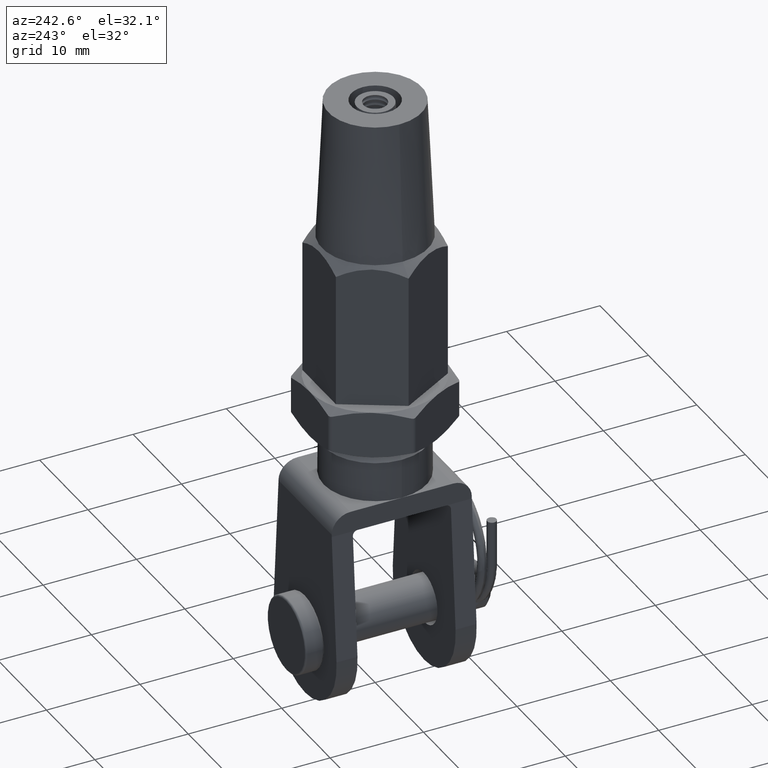
[diagram: clean part render]
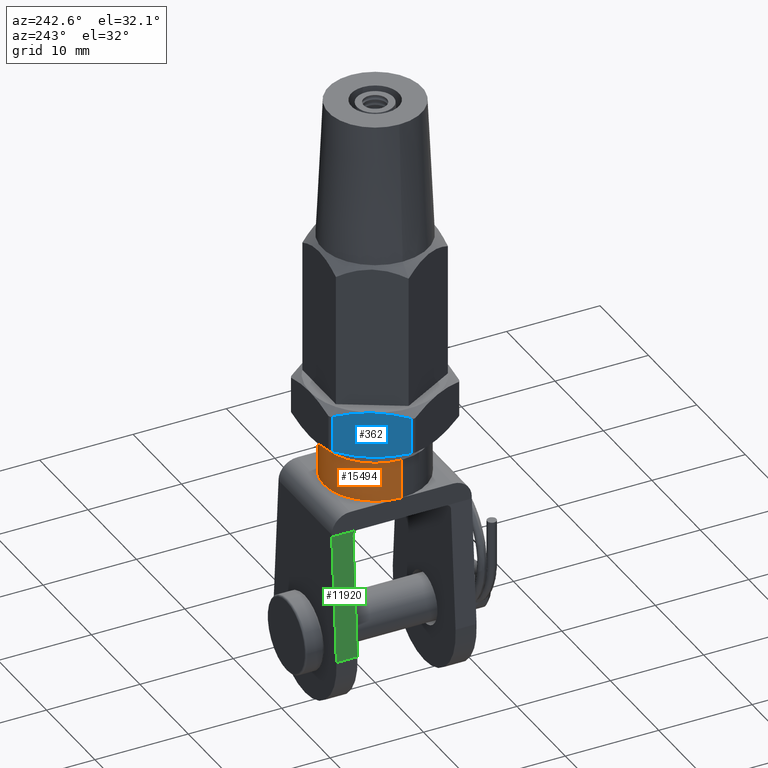
[diagram: same view with three faces highlighted in distinct colors, each labeled with its STEP entity id]
A machine part, auxiliary view with three faces highlighted in distinct colors.
Their STEP definitions:

[orange] entity #15494 — the highlighted cylindrical surface (partial cylindrical patch) has radius 5.5 mm, axis along (0, 0, 1).
#1351 = DIRECTION ( 'NONE',  ( -0.0000000000000000000, -0.0000000000000000000, 1.000000000000000000 ) ) ;
#1526 = CARTESIAN_POINT ( 'NONE',  ( 0.0000000000000000000, 0.0000000000000000000, -4.250000000000000000 ) ) ;
#1531 = AXIS2_PLACEMENT_3D ( 'NONE', #1526, #5183, #17917 ) ;
#2192 = DIRECTION ( 'NONE',  ( 1.000000000000000000, 0.0000000000000000000, 0.0000000000000000000 ) ) ;
#2292 = VERTEX_POINT ( 'NONE', #19602 ) ;
#2361 = VERTEX_POINT ( 'NONE', #12275 ) ;
#2706 = CARTESIAN_POINT ( 'NONE',  ( -5.500000000000000000, 6.735557395310441000E-016, 0.0000000000000000000 ) ) ;
#2831 = LINE ( 'NONE', #7141, #6254 ) ;
#3116 = CARTESIAN_POINT ( 'NONE',  ( 5.500000000000000000, 0.0000000000000000000, -4.250000000000000000 ) ) ;
#3486 = LINE ( 'NONE', #3671, #4901 ) ;
#3671 = CARTESIAN_POINT ( 'NONE',  ( 5.500000000000000000, 0.0000000000000000000, -6.500000000000000000 ) ) ;
#3840 = CARTESIAN_POINT ( 'NONE',  ( -5.500000000000000000, 0.0000000000000000000, -4.250000000000000000 ) ) ;
#4901 = VECTOR ( 'NONE', #6131, 1000.000000000000000 ) ;
#5006 = VERTEX_POINT ( 'NONE', #3840 ) ;
#5008 = FACE_OUTER_BOUND ( 'NONE', #15608, .T. ) ;
#5183 = DIRECTION ( 'NONE',  ( -0.0000000000000000000, 0.0000000000000000000, 1.000000000000000000 ) ) ;
#6131 = DIRECTION ( 'NONE',  ( -0.0000000000000000000, -0.0000000000000000000, 1.000000000000000000 ) ) ;
#6254 = VECTOR ( 'NONE', #1351, 1000.000000000000000 ) ;
#6331 = DIRECTION ( 'NONE',  ( -1.000000000000000000, 0.0000000000000000000, 0.0000000000000000000 ) ) ;
#7141 = CARTESIAN_POINT ( 'NONE',  ( -5.500000000000000000, 6.735557395310441000E-016, -6.500000000000000000 ) ) ;
#7281 = CARTESIAN_POINT ( 'NONE',  ( 0.0000000000000000000, 0.0000000000000000000, -4.250000000000000000 ) ) ;
#8098 = EDGE_CURVE ( 'NONE', #13541, #2292, #14322, .T. ) ;
#8525 = ORIENTED_EDGE ( 'NONE', *, *, #23223, .T. ) ;
#9327 = CIRCLE ( 'NONE', #13446, 5.500000000000000000 ) ;
#9583 = CARTESIAN_POINT ( 'NONE',  ( 0.0000000000000000000, 0.0000000000000000000, -6.500000000000000000 ) ) ;
#9594 = ORIENTED_EDGE ( 'NONE', *, *, #13080, .T. ) ;
#10557 = CARTESIAN_POINT ( 'NONE',  ( 0.0000000000000000000, 0.0000000000000000000, 0.0000000000000000000 ) ) ;
#11132 = EDGE_CURVE ( 'NONE', #5006, #19632, #2831, .T. ) ;
#12275 = CARTESIAN_POINT ( 'NONE',  ( 5.500000000000000000, 0.0000000000000000000, 0.0000000000000000000 ) ) ;
#12682 = ORIENTED_EDGE ( 'NONE', *, *, #11132, .T. ) ;
#13080 = EDGE_CURVE ( 'NONE', #19632, #2361, #9327, .T. ) ;
#13446 = AXIS2_PLACEMENT_3D ( 'NONE', #10557, #14289, #6331 ) ;
#13541 = VERTEX_POINT ( 'NONE', #3116 ) ;
#14289 = DIRECTION ( 'NONE',  ( 0.0000000000000000000, 0.0000000000000000000, -1.000000000000000000 ) ) ;
#14297 = DIRECTION ( 'NONE',  ( -0.0000000000000000000, 0.0000000000000000000, 1.000000000000000000 ) ) ;
#14322 = CIRCLE ( 'NONE', #1531, 5.500000000000000000 ) ;
#14601 = DIRECTION ( 'NONE',  ( 1.000000000000000000, 0.0000000000000000000, 0.0000000000000000000 ) ) ;
#14763 = DIRECTION ( 'NONE',  ( -0.0000000000000000000, -0.0000000000000000000, 1.000000000000000000 ) ) ;
#15494 = ADVANCED_FACE ( 'NONE', ( #5008 ), #21805, .T. ) ;
#15608 = EDGE_LOOP ( 'NONE', ( #8525, #12682, #9594, #17150, #19049 ) ) ;
#17150 = ORIENTED_EDGE ( 'NONE', *, *, #21008, .F. ) ;
#17283 = AXIS2_PLACEMENT_3D ( 'NONE', #9583, #14763, #2192 ) ;
#17917 = DIRECTION ( 'NONE',  ( 1.000000000000000000, 0.0000000000000000000, 0.0000000000000000000 ) ) ;
#19049 = ORIENTED_EDGE ( 'NONE', *, *, #8098, .T. ) ;
#19602 = CARTESIAN_POINT ( 'NONE',  ( 0.0000000000000000000, 5.500000000000000000, -4.250000000000000000 ) ) ;
#19632 = VERTEX_POINT ( 'NONE', #2706 ) ;
#21008 = EDGE_CURVE ( 'NONE', #13541, #2361, #3486, .T. ) ;
#21805 = CYLINDRICAL_SURFACE ( 'NONE', #17283, 5.500000000000000000 ) ;
#23014 = AXIS2_PLACEMENT_3D ( 'NONE', #7281, #14297, #14601 ) ;
#23223 = EDGE_CURVE ( 'NONE', #2292, #5006, #23384, .T. ) ;
#23384 = CIRCLE ( 'NONE', #23014, 5.500000000000000000 ) ;

[blue] entity #362 — the highlighted planar face has unit normal (0.866, -0.5, 0).
#174 = ORIENTED_EDGE ( 'NONE', *, *, #736, .T. ) ;
#246 = FACE_OUTER_BOUND ( 'NONE', #21797, .T. ) ;
#324 = CARTESIAN_POINT ( 'NONE',  ( 4.801270311932647400, 2.259878462213070100, 5.683955878860586200 ) ) ;
#362 = ADVANCED_FACE ( 'NONE', ( #246 ), #20009, .F. ) ;
#477 = VERTEX_POINT ( 'NONE', #16910 ) ;
#736 = EDGE_CURVE ( 'NONE', #477, #9991, #23579, .T. ) ;
#1105 = CARTESIAN_POINT ( 'NONE',  ( 6.062177826491070400, -2.500000000000000000, 3.499999999999998700 ) ) ;
#2922 = CARTESIAN_POINT ( 'NONE',  ( 7.323085341049501400, -2.259878462213070500, 1.316044121139412500 ) ) ;
#4171 = DIRECTION ( 'NONE',  ( -0.0000000000000000000, 1.000000000000000000, -0.0000000000000000000 ) ) ;
#4207 = VECTOR ( 'NONE', #4171, 1000.000000000000000 ) ;
#4555 = B_SPLINE_CURVE_WITH_KNOTS ( 'NONE', 3,
 ( #20223, #7482, #16889, #22054 ),
 .UNSPECIFIED., .F., .F.,
 ( 4, 4 ),
 ( 0.0002975062936712653200, 0.004089525732751298100 ),
 .UNSPECIFIED. ) ;
#4616 = VERTEX_POINT ( 'NONE', #22705 ) ;
#4814 = CARTESIAN_POINT ( 'NONE',  ( 6.062177826491070400, 2.500000000000000000, 3.499999999999998700 ) ) ;
#5301 = DIRECTION ( 'NONE',  ( -0.4999999999999998900, 0.0000000000000000000, 0.8660254037844387100 ) ) ;
#5627 = EDGE_CURVE ( 'NONE', #8012, #12537, #14052, .T. ) ;
#6170 = VECTOR ( 'NONE', #15679, 1000.000000000000000 ) ;
#6337 = AXIS2_PLACEMENT_3D ( 'NONE', #11012, #12831, #5301 ) ;
#6359 = CARTESIAN_POINT ( 'NONE',  ( 6.062177826491070400, -2.500000000000000000, 3.499999999999998700 ) ) ;
#6922 = EDGE_CURVE ( 'NONE', #8400, #477, #9083, .T. ) ;
#7443 = ORIENTED_EDGE ( 'NONE', *, *, #14936, .T. ) ;
#7482 = CARTESIAN_POINT ( 'NONE',  ( 4.800203052153304600, -2.291063052221563800, 5.685804427023284400 ) ) ;
#7696 = CARTESIAN_POINT ( 'NONE',  ( 4.185789451624789800, 1.955846386928185900, 6.749999999999999100 ) ) ;
#8012 = VERTEX_POINT ( 'NONE', #23020 ) ;
#8133 = ORIENTED_EDGE ( 'NONE', *, *, #14693, .T. ) ;
#8400 = VERTEX_POINT ( 'NONE', #6359 ) ;
#8708 = CARTESIAN_POINT ( 'NONE',  ( 6.700668796618727700, 2.500000000000003100, 2.394101199564958400 ) ) ;
#8969 = ORIENTED_EDGE ( 'NONE', *, *, #9877, .T. ) ;
#9083 = B_SPLINE_CURVE_WITH_KNOTS ( 'NONE', 3,
 ( #1105, #19468, #15808, #13831, #11910, #2922, #10225, #10147 ),
 .UNSPECIFIED., .F., .F.,
 ( 4, 2, 2, 4 ),
 ( 0.004089525732751298100, 0.005033813009897259900, 0.005978100287043221700, 0.007866674841335144500 ),
 .UNSPECIFIED. ) ;
#9877 = EDGE_CURVE ( 'NONE', #9991, #8012, #17833, .T. ) ;
#9991 = VERTEX_POINT ( 'NONE', #12270 ) ;
#10053 = CARTESIAN_POINT ( 'NONE',  ( 7.938566201358254300, 1.955846386927695000, 0.2499999999984440800 ) ) ;
#10147 = CARTESIAN_POINT ( 'NONE',  ( 7.938566201357355500, -1.955846386928185900, 0.2500000000000001100 ) ) ;
#10225 = CARTESIAN_POINT ( 'NONE',  ( 7.632084388212324400, -2.123059175328595700, 0.7808420719630297900 ) ) ;
#11012 = CARTESIAN_POINT ( 'NONE',  ( 4.041451884327383200, 2.500000000000000000, 6.999999999999999100 ) ) ;
#11204 = CARTESIAN_POINT ( 'NONE',  ( 5.270041378193505800, 2.401446406177510700, 4.872020574978543000 ) ) ;
#11910 = CARTESIAN_POINT ( 'NONE',  ( 6.854314274788641200, -2.401446406177510700, 2.127979425021456500 ) ) ;
#12270 = CARTESIAN_POINT ( 'NONE',  ( 7.938566201358254300, 1.955846386927695000, 0.2499999999984440800 ) ) ;
#12537 = VERTEX_POINT ( 'NONE', #19647 ) ;
#12831 = DIRECTION ( 'NONE',  ( -0.8660254037844387100, 0.0000000000000000000, -0.4999999999999998900 ) ) ;
#13831 = CARTESIAN_POINT ( 'NONE',  ( 6.697177210857828900, -2.438009949479164300, 2.400148803501821700 ) ) ;
#13928 = CARTESIAN_POINT ( 'NONE',  ( 4.185789451624789800, 2.500000000000000000, 6.749999999999999100 ) ) ;
#14052 = B_SPLINE_CURVE_WITH_KNOTS ( 'NONE', 3,
 ( #20283, #16550, #18602, #22114, #11204, #324, #18520, #7696 ),
 .UNSPECIFIED., .F., .F.,
 ( 4, 2, 2, 4 ),
 ( 0.004089525732751299000, 0.005033813009897260800, 0.005978100287043222600, 0.007866674841335144500 ),
 .UNSPECIFIED. ) ;
#14693 = EDGE_CURVE ( 'NONE', #4616, #8400, #4555, .T. ) ;
#14936 = EDGE_CURVE ( 'NONE', #12537, #4616, #20684, .T. ) ;
#15133 = CARTESIAN_POINT ( 'NONE',  ( 7.938566201357355500, 2.500000000000000000, 0.2500000000000002200 ) ) ;
#15679 = DIRECTION ( 'NONE',  ( 0.0000000000000000000, -1.000000000000000000, 0.0000000000000000000 ) ) ;
#15808 = CARTESIAN_POINT ( 'NONE',  ( 6.380929618868607100, -2.487309102513384700, 2.947905700598466800 ) ) ;
#16550 = CARTESIAN_POINT ( 'NONE',  ( 5.903181041440204200, 2.500000000000003100, 3.775390509948213200 ) ) ;
#16889 = CARTESIAN_POINT ( 'NONE',  ( 5.423686856363418400, -2.500000000000003100, 4.605898800435040700 ) ) ;
#16910 = CARTESIAN_POINT ( 'NONE',  ( 7.938566201357355500, -1.955846386928185900, 0.2500000000000001100 ) ) ;
#17833 = B_SPLINE_CURVE_WITH_KNOTS ( 'NONE', 3,
 ( #10053, #21278, #8708, #4814 ),
 .UNSPECIFIED., .F., .F.,
 ( 4, 4 ),
 ( 0.0002975062936712654800, 0.004089525732751299000 ),
 .UNSPECIFIED. ) ;
#18383 = ORIENTED_EDGE ( 'NONE', *, *, #5627, .T. ) ;
#18520 = CARTESIAN_POINT ( 'NONE',  ( 4.492271264769821700, 2.123059175328594800, 6.219157928036970000 ) ) ;
#18602 = CARTESIAN_POINT ( 'NONE',  ( 5.743426034113539900, 2.487309102513384700, 4.052094299401532300 ) ) ;
#19468 = CARTESIAN_POINT ( 'NONE',  ( 6.221174611541942800, -2.500000000000003600, 3.224609490051786300 ) ) ;
#19647 = CARTESIAN_POINT ( 'NONE',  ( 4.185789451624789800, 1.955846386928185900, 6.749999999999999100 ) ) ;
#20009 = PLANE ( 'NONE',  #6337 ) ;
#20223 = CARTESIAN_POINT ( 'NONE',  ( 4.185789451623891800, -1.955846386927695900, 6.750000000001555200 ) ) ;
#20283 = CARTESIAN_POINT ( 'NONE',  ( 6.062177826491070400, 2.500000000000000000, 3.499999999999998700 ) ) ;
#20684 = LINE ( 'NONE', #13928, #6170 ) ;
#21278 = CARTESIAN_POINT ( 'NONE',  ( 7.324152600828840700, 2.291063052221562900, 1.314195572976715900 ) ) ;
#21797 = EDGE_LOOP ( 'NONE', ( #22040, #174, #8969, #18383, #7443, #8133 ) ) ;
#22040 = ORIENTED_EDGE ( 'NONE', *, *, #6922, .T. ) ;
#22054 = CARTESIAN_POINT ( 'NONE',  ( 6.062177826491070400, -2.500000000000000000, 3.499999999999998700 ) ) ;
#22114 = CARTESIAN_POINT ( 'NONE',  ( 5.427178442124318100, 2.438009949479164700, 4.599851196498177900 ) ) ;
#22705 = CARTESIAN_POINT ( 'NONE',  ( 4.185789451623891800, -1.955846386927695900, 6.750000000001555200 ) ) ;
#23020 = CARTESIAN_POINT ( 'NONE',  ( 6.062177826491070400, 2.500000000000000000, 3.499999999999998700 ) ) ;
#23579 = LINE ( 'NONE', #15133, #4207 ) ;

[green] entity #11920 — the highlighted planar face has unit normal (0.9974, 0, -0.0725).
#137 = ORIENTED_EDGE ( 'NONE', *, *, #19506, .F. ) ;
#804 = EDGE_CURVE ( 'NONE', #21005, #1677, #8761, .T. ) ;
#1307 = CARTESIAN_POINT ( 'NONE',  ( -5.499999999999999100, 5.042893218813452100, -6.499999999999999100 ) ) ;
#1354 = VECTOR ( 'NONE', #12412, 1000.000000000000100 ) ;
#1486 = ORIENTED_EDGE ( 'NONE', *, *, #9961, .T. ) ;
#1608 = LINE ( 'NONE', #20167, #7271 ) ;
#1677 = VERTEX_POINT ( 'NONE', #1854 ) ;
#1724 = DIRECTION ( 'NONE',  ( 0.07246130468783228100, 0.0000000000000000000, 0.9973712244309723700 ) ) ;
#1854 = CARTESIAN_POINT ( 'NONE',  ( -5.536326145628059700, 5.250000000000000000, -6.999999999999997300 ) ) ;
#3743 = CARTESIAN_POINT ( 'NONE',  ( -5.500000000000000000, 7.500000000000000000, -6.500000000000000000 ) ) ;
#4256 = FACE_OUTER_BOUND ( 'NONE', #22001, .T. ) ;
#6552 = LINE ( 'NONE', #12698, #19931 ) ;
#7271 = VECTOR ( 'NONE', #1724, 1000.000000000000100 ) ;
#8761 = LINE ( 'NONE', #14009, #1354 ) ;
#9961 = EDGE_CURVE ( 'NONE', #1677, #10912, #22359, .T. ) ;
#10912 = VERTEX_POINT ( 'NONE', #19493 ) ;
#11920 = ADVANCED_FACE ( 'NONE', ( #4256 ), #13073, .F. ) ;
#12188 = CARTESIAN_POINT ( 'NONE',  ( -5.536326145628059700, 5.250000000000000000, -6.999999999999997300 ) ) ;
#12288 = ORIENTED_EDGE ( 'NONE', *, *, #23362, .T. ) ;
#12412 = DIRECTION ( 'NONE',  ( 0.07246130468783228100, 0.0000000000000000000, 0.9973712244309723700 ) ) ;
#12489 = ORIENTED_EDGE ( 'NONE', *, *, #804, .T. ) ;
#12698 = CARTESIAN_POINT ( 'NONE',  ( -6.482912958801320800, 7.500000000000000000, -20.02900151952909300 ) ) ;
#13073 = PLANE ( 'NONE',  #16347 ) ;
#13154 = DIRECTION ( 'NONE',  ( 0.9973712244309724800, 0.0000000000000000000, -0.07246130468783229500 ) ) ;
#14009 = CARTESIAN_POINT ( 'NONE',  ( -6.482912958801320800, 5.250000000000000000, -20.02900151952909300 ) ) ;
#15209 = EDGE_CURVE ( 'NONE', #17933, #23344, #1608, .T. ) ;
#15222 = CARTESIAN_POINT ( 'NONE',  ( -6.482912958801320800, 7.500000000000000000, -20.02900151952909300 ) ) ;
#16347 = AXIS2_PLACEMENT_3D ( 'NONE', #15222, #13154, #20638 ) ;
#16453 = CARTESIAN_POINT ( 'NONE',  ( -5.500000000000000000, 7.500000000000000000, -6.500000000000000000 ) ) ;
#16560 = DIRECTION ( 'NONE',  ( -0.0000000000000000000, -1.000000000000000000, -0.0000000000000000000 ) ) ;
#16778 = ORIENTED_EDGE ( 'NONE', *, *, #15209, .F. ) ;
#17933 = VERTEX_POINT ( 'NONE', #19042 ) ;
#18051 = DIRECTION ( 'NONE',  ( -0.0000000000000000000, -1.000000000000000000, -0.0000000000000000000 ) ) ;
#19042 = CARTESIAN_POINT ( 'NONE',  ( -6.482912958801320800, 7.500000000000000000, -20.02900151952909300 ) ) ;
#19493 = CARTESIAN_POINT ( 'NONE',  ( -5.500000000000000000, 4.750000000000000900, -6.500000000000000000 ) ) ;
#19506 = EDGE_CURVE ( 'NONE', #23344, #10912, #22875, .T. ) ;
#19520 = CARTESIAN_POINT ( 'NONE',  ( -5.500000000000000000, 4.750000000000000900, -6.500000000000000000 ) ) ;
#19931 = VECTOR ( 'NONE', #18051, 1000.000000000000000 ) ;
#20058 = CARTESIAN_POINT ( 'NONE',  ( -6.482912958801320800, 5.250000000000000000, -20.02900151952909300 ) ) ;
#20167 = CARTESIAN_POINT ( 'NONE',  ( -6.482912958801320800, 7.500000000000000000, -20.02900151952909300 ) ) ;
#20303 = VECTOR ( 'NONE', #16560, 1000.000000000000000 ) ;
#20638 = DIRECTION ( 'NONE',  ( -0.07246130468783228100, 0.0000000000000000000, -0.9973712244309723700 ) ) ;
#21005 = VERTEX_POINT ( 'NONE', #20058 ) ;
#22001 = EDGE_LOOP ( 'NONE', ( #12489, #1486, #137, #16778, #12288 ) ) ;
#22359 =( BOUNDED_CURVE ( )  B_SPLINE_CURVE ( 3, ( #12188, #22961, #1307, #19520 ),
 .UNSPECIFIED., .F., .F. ) 
 B_SPLINE_CURVE_WITH_KNOTS ( ( 4, 4 ),
 ( 1.570796326794900100, 3.141592653589793100 ),
 .UNSPECIFIED. ) 
 CURVE ( )  GEOMETRIC_REPRESENTATION_ITEM ( )  RATIONAL_B_SPLINE_CURVE ( ( 1.000000000000000000, 0.8047378541243658300, 0.8047378541243658300, 1.000000000000000000 ) ) 
 REPRESENTATION_ITEM ( '' )  );
#22875 = LINE ( 'NONE', #3743, #20303 ) ;
#22961 = CARTESIAN_POINT ( 'NONE',  ( -5.515046782187882400, 5.250000000000000900, -6.707106781186546100 ) ) ;
#23344 = VERTEX_POINT ( 'NONE', #16453 ) ;
#23362 = EDGE_CURVE ( 'NONE', #17933, #21005, #6552, .T. ) ;